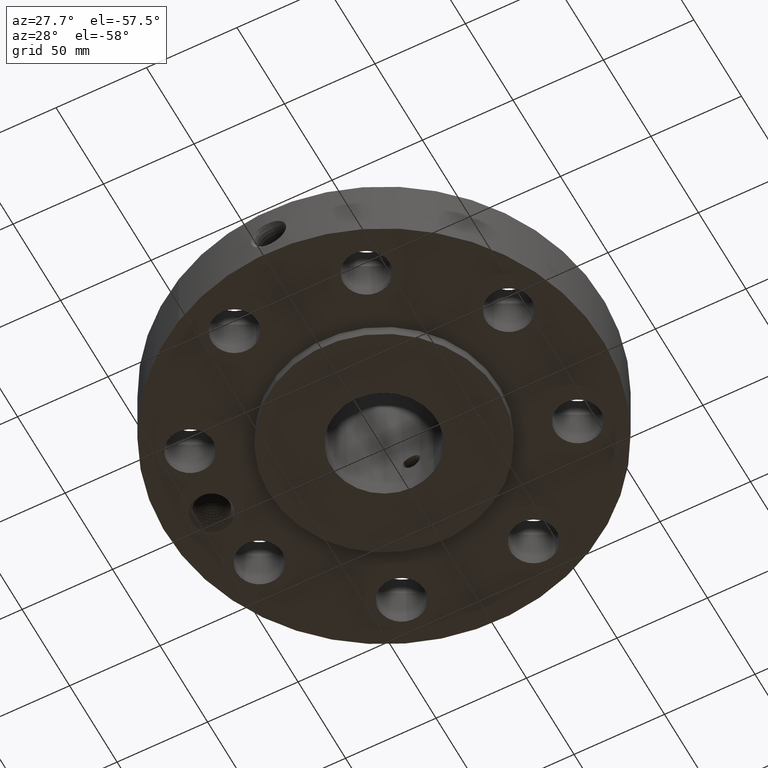
[diagram: clean part render]
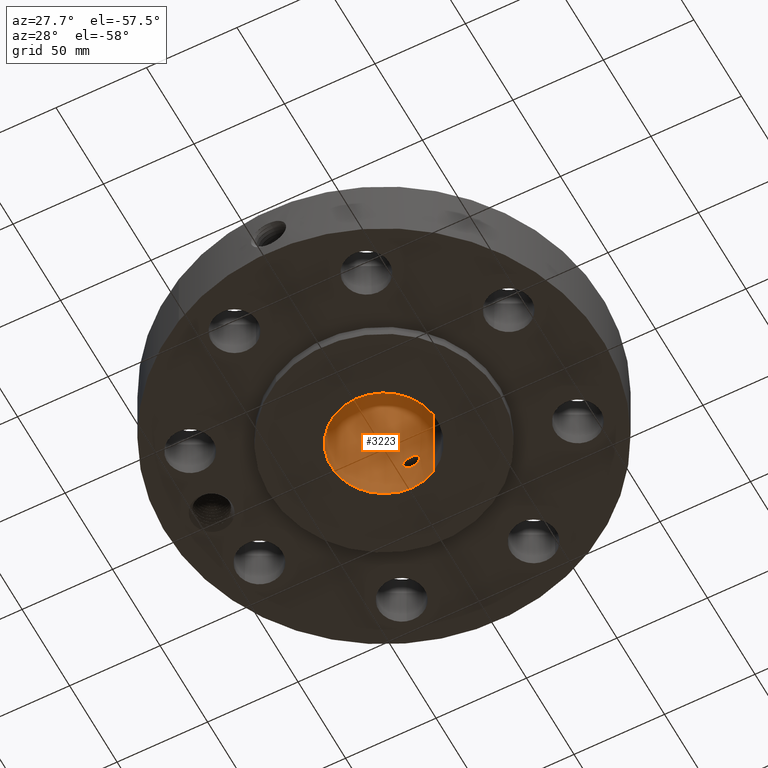
[diagram: same view with one face highlighted and labeled with its STEP entity id]
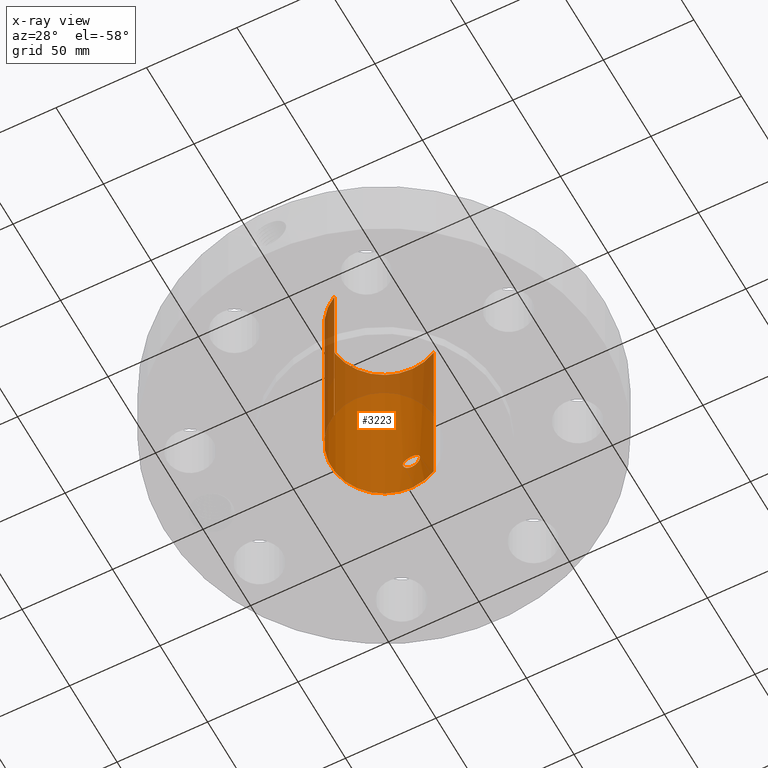
[diagram: x-ray of the same camera — body ghosted, the highlighted face saturated]
A machine part, auxiliary view. The second image highlights one B-rep face of the part: STEP entity #3223.
The next image is the same camera in x-ray: the body ghosted, the highlighted face saturated — about 30% of this face is hidden behind the body in this view.
In plain terms, the highlighted cylindrical surface (partial cylindrical patch) has radius 29.21 mm, axis along (0, 0, -1).
Its self-contained STEP definition (entity closure, byte-faithful):
#2341=AXIS2_PLACEMENT_3D('Circle Axis2P3D',#2339,#2340,$) ;
#3100=AXIS2_PLACEMENT_3D('Cylinder Axis2P3D',#3097,#3098,#3099) ;
#3172=AXIS2_PLACEMENT_3D('Circle Axis2P3D',#3170,#3171,$) ;
#2334=CARTESIAN_POINT('Vertex',(0.551339369397,1.00921994618,-3.91637728372E-015)) ;
#2336=CARTESIAN_POINT('Vertex',(-0.551339369397,-1.00921994618,-3.91637728372E-015)) ;
#2339=CARTESIAN_POINT('Axis2P3D Location',(0.,0.,0.)) ;
#3097=CARTESIAN_POINT('Axis2P3D Location',(0.,0.,2.12500000001)) ;
#3106=CARTESIAN_POINT('Vertex',(0.551339369397,1.00921994618,4.25000000002)) ;
#3108=CARTESIAN_POINT('Vertex',(-0.551339369397,-1.00921994618,4.25000000002)) ;
#3111=CARTESIAN_POINT('Line Origine',(0.551339369397,1.00921994618,2.12500000001)) ;
#3116=CARTESIAN_POINT('Line Origine',(-0.551339369397,-1.00921994618,2.12500000001)) ;
#3170=CARTESIAN_POINT('Axis2P3D Location',(0.,0.,4.25000000002)) ;
#3182=CARTESIAN_POINT('Control Point',(0.164546730355,1.13816711143,1.02989228849)) ;
#3183=CARTESIAN_POINT('Control Point',(0.153731456487,1.13973069373,1.04968951452)) ;
#3184=CARTESIAN_POINT('Control Point',(0.139948746178,1.14159213501,1.06784206895)) ;
#3185=CARTESIAN_POINT('Control Point',(0.123523720018,1.14356105809,1.08377552325)) ;
#3186=CARTESIAN_POINT('Control Point',(0.0772319416287,1.14809159051,1.11675084609)) ;
#3187=CARTESIAN_POINT('Control Point',(0.0212741450386,1.15057887466,1.13097172603)) ;
#3188=CARTESIAN_POINT('Control Point',(-0.0137347069354,1.15070493463,1.13166463019)) ;
#3189=CARTESIAN_POINT('Control Point',(-0.0702470116871,1.14856850265,1.11964779221)) ;
#3190=CARTESIAN_POINT('Control Point',(-0.117822070896,1.14417622941,1.08848974867)) ;
#3191=CARTESIAN_POINT('Control Point',(-0.134871090782,1.14221708934,1.07319253366)) ;
#3192=CARTESIAN_POINT('Control Point',(-0.174318947872,1.13705048297,1.02522491834)) ;
#3193=CARTESIAN_POINT('Control Point',(-0.192220809723,1.13381572754,0.964215676326)) ;
#3194=CARTESIAN_POINT('Control Point',(-0.193021554594,1.13366052048,0.923270882897)) ;
#3195=CARTESIAN_POINT('Control Point',(-0.183195658147,1.13547100463,0.884244344861)) ;
#3196=CARTESIAN_POINT('Control Point',(-0.164546730355,1.13816711143,0.850107711515)) ;
#3197=CARTESIAN_POINT('Vertex',(0.164546730355,1.13816711143,1.02989228849)) ;
#3199=CARTESIAN_POINT('Vertex',(-0.164546730355,1.13816711143,0.850107711515)) ;
#3203=CARTESIAN_POINT('Control Point',(-0.164546730355,1.13816711143,0.850107711515)) ;
#3204=CARTESIAN_POINT('Control Point',(-0.153731456487,1.13973069373,0.830310485493)) ;
#3205=CARTESIAN_POINT('Control Point',(-0.13994874618,1.14159213501,0.81215793106)) ;
#3206=CARTESIAN_POINT('Control Point',(-0.12352372002,1.14356105809,0.796224476758)) ;
#3207=CARTESIAN_POINT('Control Point',(-0.077231941631,1.14809159051,0.763249153919)) ;
#3208=CARTESIAN_POINT('Control Point',(-0.0212741450411,1.15057887466,0.74902827398)) ;
#3209=CARTESIAN_POINT('Control Point',(0.0137347069283,1.15070493463,0.748335369813)) ;
#3210=CARTESIAN_POINT('Control Point',(0.0702470116819,1.14856850265,0.760352207799)) ;
#3211=CARTESIAN_POINT('Control Point',(0.117822070893,1.14417622941,0.791510251333)) ;
#3212=CARTESIAN_POINT('Control Point',(0.134871090779,1.14221708934,0.806807466346)) ;
#3213=CARTESIAN_POINT('Control Point',(0.174318947873,1.13705048297,0.854775081672)) ;
#3214=CARTESIAN_POINT('Control Point',(0.192220809726,1.13381572754,0.915784323688)) ;
#3215=CARTESIAN_POINT('Control Point',(0.193021554597,1.13366052048,0.956729117098)) ;
#3216=CARTESIAN_POINT('Control Point',(0.18319565815,1.13547100463,0.995755655141)) ;
#3217=CARTESIAN_POINT('Control Point',(0.164546730355,1.13816711143,1.02989228849)) ;
#2340=DIRECTION('Axis2P3D Direction',(0.,0.,-0.0393700787402)) ;
#3098=DIRECTION('Axis2P3D Direction',(0.,0.,-0.0393700787402)) ;
#3099=DIRECTION('Axis2P3D XDirection',(-0.0188750212049,-0.0345504945626,0.)) ;
#3112=DIRECTION('Vector Direction',(0.,0.,-0.0393700787402)) ;
#3117=DIRECTION('Vector Direction',(0.,0.,-0.0393700787402)) ;
#3171=DIRECTION('Axis2P3D Direction',(0.,0.,-0.0393700787402)) ;
#3113=VECTOR('Line Direction',#3112,0.0393700787402) ;
#3118=VECTOR('Line Direction',#3117,0.0393700787402) ;
#3176=ORIENTED_EDGE('',*,*,#3174,.F.) ;
#3177=ORIENTED_EDGE('',*,*,#3120,.T.) ;
#3178=ORIENTED_EDGE('',*,*,#2343,.T.) ;
#3179=ORIENTED_EDGE('',*,*,#3115,.F.) ;
#3220=ORIENTED_EDGE('',*,*,#3201,.F.) ;
#3221=ORIENTED_EDGE('',*,*,#3218,.F.) ;
#3222=FACE_BOUND('',#3219,.T.) ;
#3223=ADVANCED_FACE('PartBody',(#3180,#3222),#3101,.F.) ;
#3181=B_SPLINE_CURVE_WITH_KNOTS('',5,(#3182,#3183,#3184,#3185,#3186,#3187,#3188,#3189,#3190,#3191,#3192,#3193,#3194,#3195,#3196),.UNSPECIFIED.,.F.,.U.,(6,3,3,3,6),(0.,4.06140002071,10.1258632568,14.1909067078,21.1940354904),.UNSPECIFIED.) ;
#3202=B_SPLINE_CURVE_WITH_KNOTS('',5,(#3203,#3204,#3205,#3206,#3207,#3208,#3209,#3210,#3211,#3212,#3213,#3214,#3215,#3216,#3217),.UNSPECIFIED.,.F.,.U.,(6,3,3,3,6),(0.,4.06140002049,10.1258632568,14.1909067079,21.1940354916),.UNSPECIFIED.) ;
#2342=CIRCLE('generated circle',#2341,1.15) ;
#3173=CIRCLE('generated circle',#3172,1.15) ;
#3101=CYLINDRICAL_SURFACE('generated cylinder',#3100,1.15) ;
#2343=EDGE_CURVE('',#2337,#2335,#2342,.T.) ;
#3115=EDGE_CURVE('',#3107,#2335,#3114,.T.) ;
#3120=EDGE_CURVE('',#3109,#2337,#3119,.T.) ;
#3174=EDGE_CURVE('',#3109,#3107,#3173,.T.) ;
#3201=EDGE_CURVE('',#3198,#3200,#3181,.T.) ;
#3218=EDGE_CURVE('',#3200,#3198,#3202,.T.) ;
#3175=EDGE_LOOP('',(#3176,#3177,#3178,#3179)) ;
#3219=EDGE_LOOP('',(#3220,#3221)) ;
#3180=FACE_OUTER_BOUND('',#3175,.T.) ;
#3114=LINE('Line',#3111,#3113) ;
#3119=LINE('Line',#3116,#3118) ;
#2335=VERTEX_POINT('',#2334) ;
#2337=VERTEX_POINT('',#2336) ;
#3107=VERTEX_POINT('',#3106) ;
#3109=VERTEX_POINT('',#3108) ;
#3198=VERTEX_POINT('',#3197) ;
#3200=VERTEX_POINT('',#3199) ;